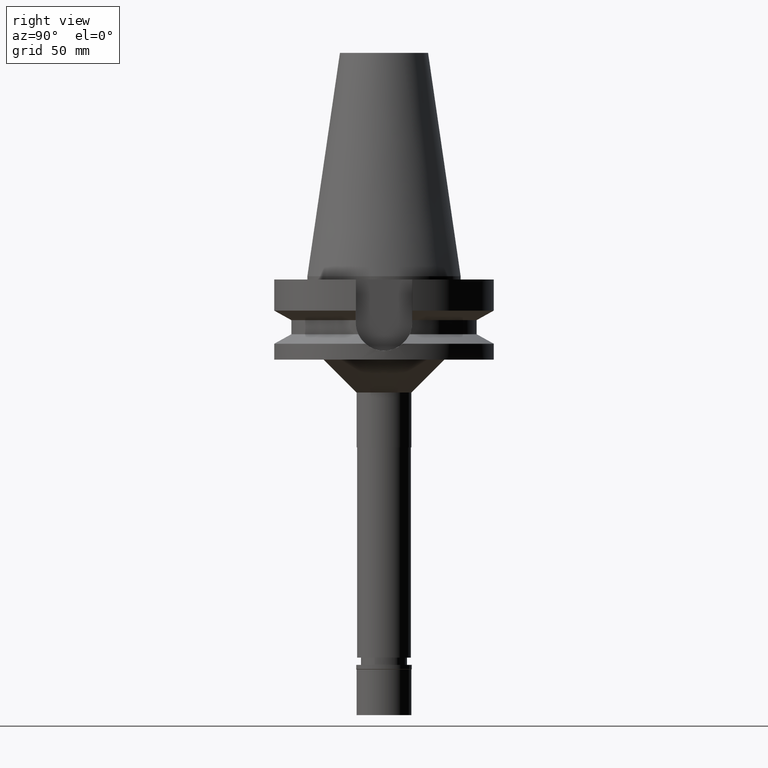
[diagram: clean part render]
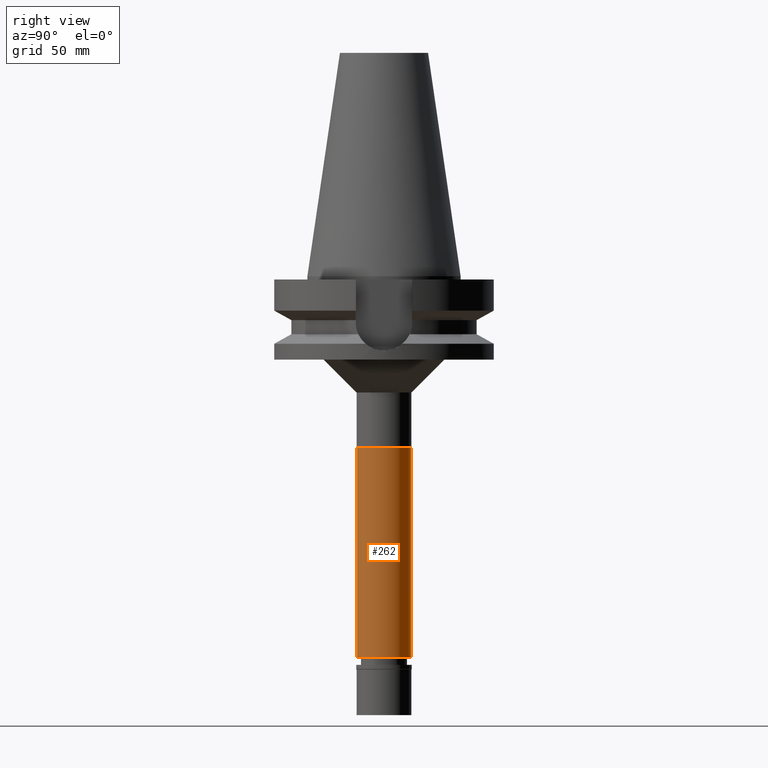
[diagram: same view with one face highlighted and labeled with its STEP entity id]
A machine part, right view. The second image highlights one B-rep face of the part: STEP entity #262.
In plain terms, the highlighted cylindrical surface (edge-blend (fillet) strip) has radius 12.25 mm, axis along (0, 0, -1).
Its self-contained STEP definition (entity closure, byte-faithful):
#28 = AXIS2_PLACEMENT_3D ( 'NONE', #3218, #996, #1989 ) ;
#109 = EDGE_CURVE ( 'NONE', #453, #2715, #855, .T. ) ;
#262 = ADVANCED_FACE ( 'NONE', ( #2813 ), #1862, .T. ) ;
#293 = CARTESIAN_POINT ( 'NONE',  ( 0.0000000000000000000, -12.25000000000000000, -173.8000000000000114 ) ) ;
#449 = CIRCLE ( 'NONE', #621, 12.25000000000000000 ) ;
#450 = VECTOR ( 'NONE', #1309, 1000.000000000000000 ) ;
#453 = VERTEX_POINT ( 'NONE', #1801 ) ;
#563 = CIRCLE ( 'NONE', #28, 12.25000000000000000 ) ;
#621 = AXIS2_PLACEMENT_3D ( 'NONE', #939, #1939, #985 ) ;
#847 = EDGE_CURVE ( 'NONE', #453, #1722, #449, .T. ) ;
#855 = LINE ( 'NONE', #1544, #1134 ) ;
#856 = ORIENTED_EDGE ( 'NONE', *, *, #2864, .T. ) ;
#923 = AXIS2_PLACEMENT_3D ( 'NONE', #1811, #2848, #1621 ) ;
#939 = CARTESIAN_POINT ( 'NONE',  ( 0.0000000000000000000, 2.650625532074999626E-14, -78.00000000000000000 ) ) ;
#985 = DIRECTION ( 'NONE',  ( 0.0000000000000000000, 1.000000000000000000, 0.0000000000000000000 ) ) ;
#996 = DIRECTION ( 'NONE',  ( 0.0000000000000000000, 0.0000000000000000000, 1.000000000000000000 ) ) ;
#1134 = VECTOR ( 'NONE', #2793, 1000.000000000000000 ) ;
#1309 = DIRECTION ( 'NONE',  ( 0.0000000000000000000, 0.0000000000000000000, -1.000000000000000000 ) ) ;
#1544 = CARTESIAN_POINT ( 'NONE',  ( 0.0000000000000000000, 12.25000000000000000, -78.00000000000000000 ) ) ;
#1569 = ORIENTED_EDGE ( 'NONE', *, *, #2948, .T. ) ;
#1621 = DIRECTION ( 'NONE',  ( 0.0000000000000000000, -1.000000000000000000, 0.0000000000000000000 ) ) ;
#1722 = VERTEX_POINT ( 'NONE', #1798 ) ;
#1761 = CARTESIAN_POINT ( 'NONE',  ( 0.0000000000000000000, 12.25000000000000000, -173.8000000000000114 ) ) ;
#1768 = ORIENTED_EDGE ( 'NONE', *, *, #109, .F. ) ;
#1798 = CARTESIAN_POINT ( 'NONE',  ( 0.0000000000000000000, -12.25000000000000000, -78.00000000000000000 ) ) ;
#1801 = CARTESIAN_POINT ( 'NONE',  ( 0.0000000000000000000, 12.25000000000000000, -78.00000000000000000 ) ) ;
#1811 = CARTESIAN_POINT ( 'NONE',  ( 0.0000000000000000000, 2.650625532074999626E-14, 116.4399999999999977 ) ) ;
#1826 = CARTESIAN_POINT ( 'NONE',  ( 0.0000000000000000000, -12.25000000000000000, -78.00000000000000000 ) ) ;
#1862 = CYLINDRICAL_SURFACE ( 'NONE', #923, 12.25000000000000000 ) ;
#1939 = DIRECTION ( 'NONE',  ( 0.0000000000000000000, 0.0000000000000000000, -1.000000000000000000 ) ) ;
#1989 = DIRECTION ( 'NONE',  ( 0.0000000000000000000, -1.000000000000000000, 0.0000000000000000000 ) ) ;
#2234 = EDGE_LOOP ( 'NONE', ( #2481, #1569, #856, #1768 ) ) ;
#2481 = ORIENTED_EDGE ( 'NONE', *, *, #847, .T. ) ;
#2715 = VERTEX_POINT ( 'NONE', #1761 ) ;
#2793 = DIRECTION ( 'NONE',  ( 0.0000000000000000000, 0.0000000000000000000, -1.000000000000000000 ) ) ;
#2813 = FACE_OUTER_BOUND ( 'NONE', #2234, .T. ) ;
#2838 = LINE ( 'NONE', #1826, #450 ) ;
#2848 = DIRECTION ( 'NONE',  ( 0.0000000000000000000, 0.0000000000000000000, -1.000000000000000000 ) ) ;
#2864 = EDGE_CURVE ( 'NONE', #2893, #2715, #563, .T. ) ;
#2893 = VERTEX_POINT ( 'NONE', #293 ) ;
#2948 = EDGE_CURVE ( 'NONE', #1722, #2893, #2838, .T. ) ;
#3218 = CARTESIAN_POINT ( 'NONE',  ( 0.0000000000000000000, 2.650625532074999626E-14, -173.8000000000000114 ) ) ;